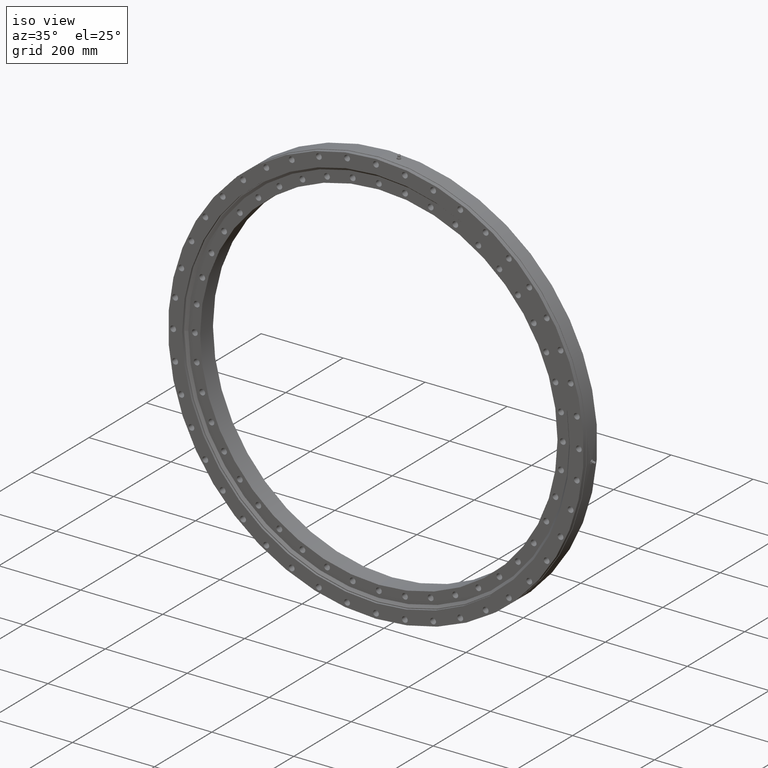
[diagram: clean part render]
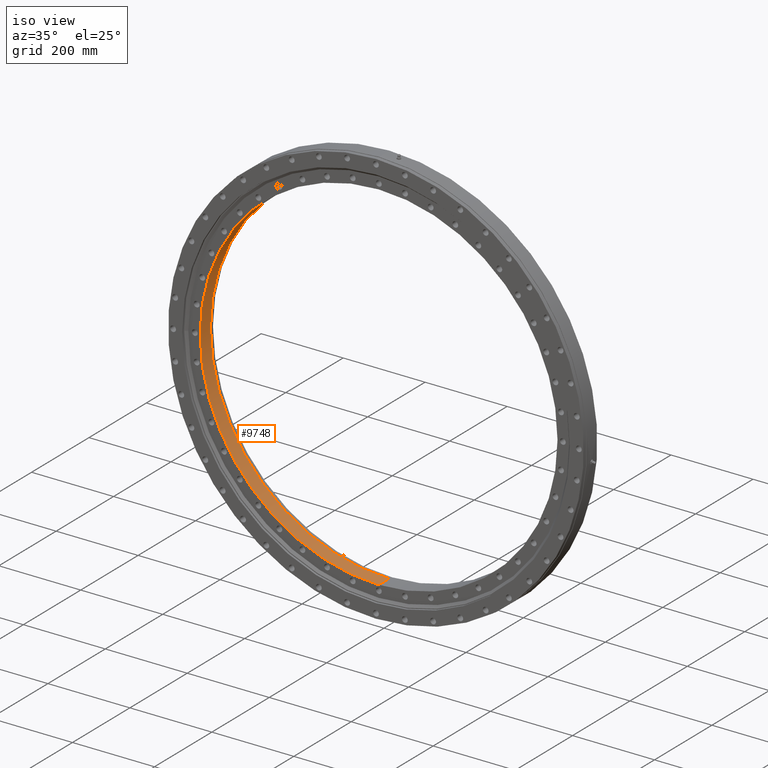
[diagram: same view with one face highlighted and labeled with its STEP entity id]
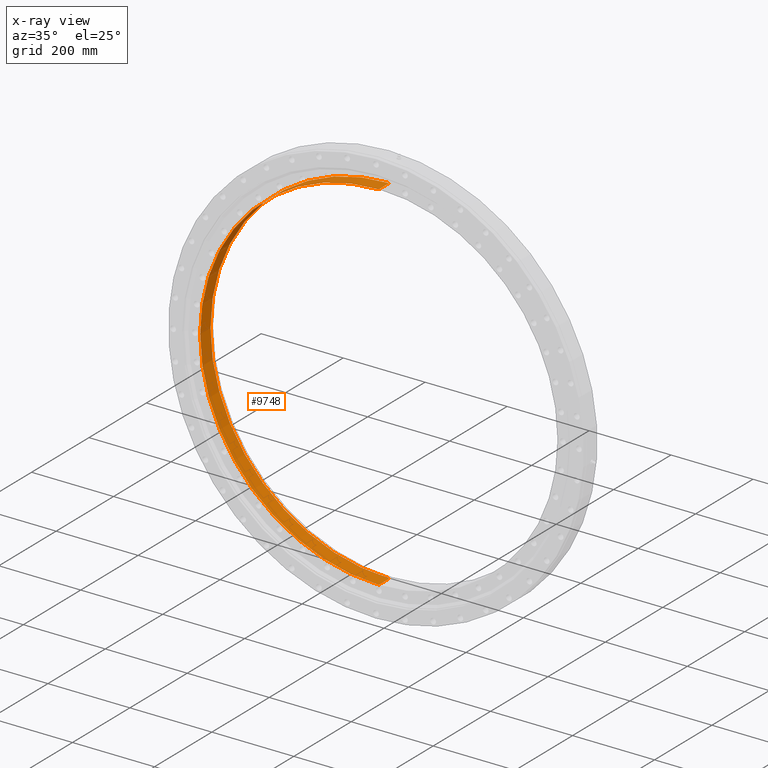
[diagram: x-ray of the same camera — body ghosted, the highlighted face saturated]
A machine part, iso view. The second image highlights one B-rep face of the part: STEP entity #9748.
The next image is the same camera in x-ray: the body ghosted, the highlighted face saturated — about 0% of this face is hidden behind the body in this view.
In plain terms, the highlighted cylindrical surface (partial cylindrical patch) has radius 436 mm, axis along (-0, 1, -0).
Its self-contained STEP definition (entity closure, byte-faithful):
#613 = DIRECTION ( 'NONE',  ( -0.0000000000000000000, 1.000000000000000000, -2.727064569436389700E-017 ) ) ;
#832 = FACE_OUTER_BOUND ( 'NONE', #11210, .T. ) ;
#978 = AXIS2_PLACEMENT_3D ( 'NONE', #9296, #613, #10194 ) ;
#2468 = CARTESIAN_POINT ( 'NONE',  ( 0.0000000000000000000, 17.99999999999996800, -1.337055386078460500E-015 ) ) ;
#2668 = CARTESIAN_POINT ( 'NONE',  ( 0.0000000000000000000, -18.00000000000001100, -3.553121410813609700E-016 ) ) ;
#2792 = VECTOR ( 'NONE', #6669, 1000.000000000000000 ) ;
#2917 = CARTESIAN_POINT ( 'NONE',  ( 5.339460044282460700E-014, 31.02910628019323300, -436.0000000000000600 ) ) ;
#2923 = EDGE_CURVE ( 'NONE', #6312, #4770, #7444, .T. ) ;
#3353 = ORIENTED_EDGE ( 'NONE', *, *, #11088, .F. ) ;
#3354 = DIRECTION ( 'NONE',  ( 0.0000000000000000000, 0.0000000000000000000, 1.000000000000000000 ) ) ;
#3534 = DIRECTION ( 'NONE',  ( 0.0000000000000000000, 2.387234141252486500E-017, 1.000000000000000000 ) ) ;
#3790 = CARTESIAN_POINT ( 'NONE',  ( 0.0000000000000000000, 17.99999999999996800, 436.0000000000000600 ) ) ;
#3797 = DIRECTION ( 'NONE',  ( -0.0000000000000000000, 1.000000000000000000, -2.727064569436389700E-017 ) ) ;
#3893 = CARTESIAN_POINT ( 'NONE',  ( 0.0000000000000000000, 31.02910628019325400, 436.0000000000000600 ) ) ;
#4075 = CYLINDRICAL_SURFACE ( 'NONE', #978, 436.0000000000000600 ) ;
#4770 = VERTEX_POINT ( 'NONE', #3790 ) ;
#5042 = LINE ( 'NONE', #2917, #9141 ) ;
#5317 = ORIENTED_EDGE ( 'NONE', *, *, #2923, .F. ) ;
#6312 = VERTEX_POINT ( 'NONE', #9263 ) ;
#6510 = CARTESIAN_POINT ( 'NONE',  ( 5.339460044282460700E-014, -18.00000000000001800, -436.0000000000000600 ) ) ;
#6660 = EDGE_CURVE ( 'NONE', #6928, #6312, #9232, .T. ) ;
#6669 = DIRECTION ( 'NONE',  ( -0.0000000000000000000, 1.000000000000000000, -2.727064569436389700E-017 ) ) ;
#6908 = AXIS2_PLACEMENT_3D ( 'NONE', #2468, #8590, #3354 ) ;
#6928 = VERTEX_POINT ( 'NONE', #6510 ) ;
#7378 = ORIENTED_EDGE ( 'NONE', *, *, #8578, .T. ) ;
#7444 = LINE ( 'NONE', #3893, #2792 ) ;
#7506 = CIRCLE ( 'NONE', #6908, 436.0000000000000600 ) ;
#7614 = CARTESIAN_POINT ( 'NONE',  ( 5.339460044282460700E-014, 17.99999999999996800, -436.0000000000000600 ) ) ;
#8299 = AXIS2_PLACEMENT_3D ( 'NONE', #2668, #8784, #3534 ) ;
#8514 = ORIENTED_EDGE ( 'NONE', *, *, #6660, .F. ) ;
#8578 = EDGE_CURVE ( 'NONE', #6928, #9415, #5042, .T. ) ;
#8590 = DIRECTION ( 'NONE',  ( 0.0000000000000000000, -1.000000000000000000, 0.0000000000000000000 ) ) ;
#8784 = DIRECTION ( 'NONE',  ( -0.0000000000000000000, 1.000000000000000000, -2.727064569436389700E-017 ) ) ;
#9141 = VECTOR ( 'NONE', #3797, 1000.000000000000000 ) ;
#9232 = CIRCLE ( 'NONE', #8299, 436.0000000000000600 ) ;
#9263 = CARTESIAN_POINT ( 'NONE',  ( 0.0000000000000000000, -18.00000000000000000, 436.0000000000000600 ) ) ;
#9296 = CARTESIAN_POINT ( 'NONE',  ( 0.0000000000000000000, 31.02910628019324300, -1.692367527159823000E-015 ) ) ;
#9415 = VERTEX_POINT ( 'NONE', #7614 ) ;
#9748 = ADVANCED_FACE ( 'NONE', ( #832 ), #4075, .F. ) ;
#10194 = DIRECTION ( 'NONE',  ( 0.0000000000000000000, 2.387234141252486500E-017, 1.000000000000000000 ) ) ;
#11088 = EDGE_CURVE ( 'NONE', #4770, #9415, #7506, .T. ) ;
#11210 = EDGE_LOOP ( 'NONE', ( #8514, #7378, #3353, #5317 ) ) ;